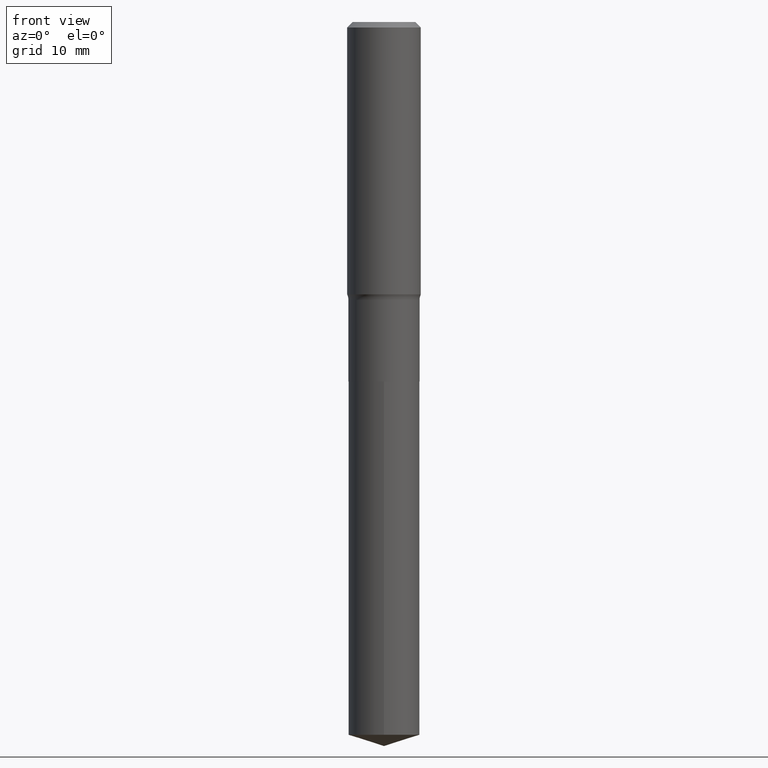
[diagram: clean part render]
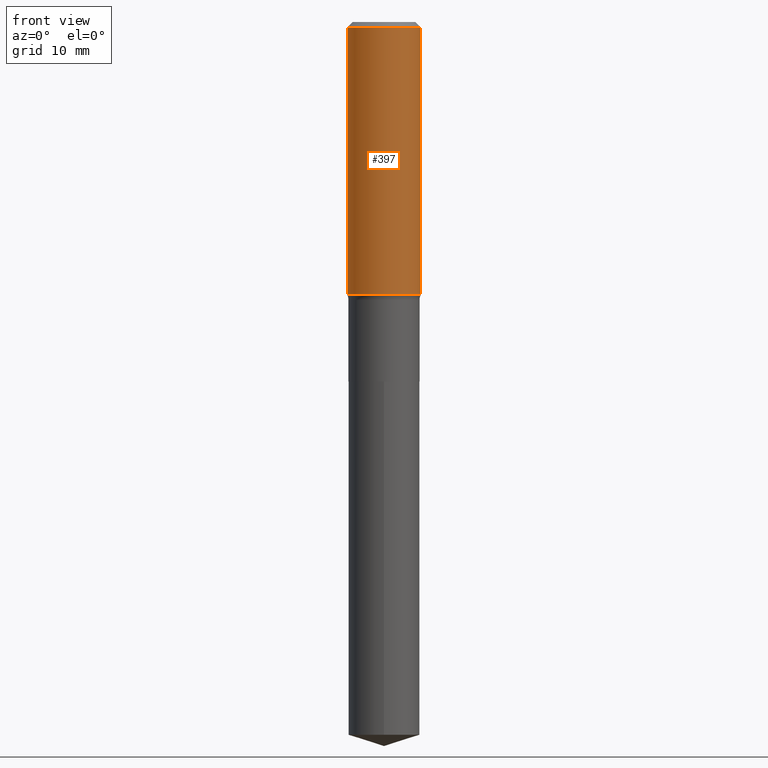
[diagram: same view with one face highlighted and labeled with its STEP entity id]
A machine part, front view. The second image highlights one B-rep face of the part: STEP entity #397.
In plain terms, the highlighted cylindrical surface (partial cylindrical patch) has radius 5.9995 mm, axis along (-0, 0, 1).
Its self-contained STEP definition (entity closure, byte-faithful):
#15 = DIRECTION ( 'NONE',  ( -2.445468806185136877E-29, 3.491481338843145188E-15, 1.000000000000000000 ) ) ;
#16 = DIRECTION ( 'NONE',  ( 1.000000000000000000, -6.982962677686266711E-15, 4.876176775795936353E-29 ) ) ;
#27 = VERTEX_POINT ( 'NONE', #81 ) ;
#38 = DIRECTION ( 'NONE',  ( -2.445468806185136597E-29, 3.491481338843145583E-15, 1.000000000000000000 ) ) ;
#51 = CARTESIAN_POINT ( 'NONE',  ( 0.000000000000000000, 0.000000000000000000, 0.000000000000000000 ) ) ;
#52 = AXIS2_PLACEMENT_3D ( 'NONE', #221, #38, #180 ) ;
#81 = CARTESIAN_POINT ( 'NONE',  ( -0.2362000000000002431, -4.424100567354349199E-15, -1.747797544076708398 ) ) ;
#82 = EDGE_CURVE ( 'NONE', #358, #167, #126, .T. ) ;
#92 = EDGE_CURVE ( 'NONE', #27, #358, #444, .T. ) ;
#104 = EDGE_CURVE ( 'NONE', #27, #443, #244, .T. ) ;
#125 = CYLINDRICAL_SURFACE ( 'NONE', #239, 0.2362000000000001321 ) ;
#126 = CIRCLE ( 'NONE', #52, 0.2361999999999999933 ) ;
#155 = EDGE_LOOP ( 'NONE', ( #331, #338, #285, #222 ) ) ;
#156 = FACE_OUTER_BOUND ( 'NONE', #155, .T. ) ;
#158 = LINE ( 'NONE', #315, #197 ) ;
#167 = VERTEX_POINT ( 'NONE', #363 ) ;
#180 = DIRECTION ( 'NONE',  ( 1.000000000000000000, -6.982962677686266711E-15, 0.000000000000000000 ) ) ;
#187 = DIRECTION ( 'NONE',  ( -2.445468806185136597E-29, 3.491481338843145583E-15, 1.000000000000000000 ) ) ;
#197 = VECTOR ( 'NONE', #15, 39.37007874015748143 ) ;
#221 = CARTESIAN_POINT ( 'NONE',  ( 8.664295980313993487E-31, -1.237031838352134079E-16, -0.03543000000000021826 ) ) ;
#222 = ORIENTED_EDGE ( 'NONE', *, *, #82, .F. ) ;
#227 = CARTESIAN_POINT ( 'NONE',  ( 4.274184373566582098E-29, -6.102402509219707960E-15, -1.747797544076708398 ) ) ;
#239 = AXIS2_PLACEMENT_3D ( 'NONE', #51, #240, #16 ) ;
#240 = DIRECTION ( 'NONE',  ( -2.445468806185136597E-29, 3.491481338843145583E-15, 1.000000000000000000 ) ) ;
#244 = CIRCLE ( 'NONE', #389, 0.2362000000000002431 ) ;
#248 = CARTESIAN_POINT ( 'NONE',  ( -0.2362000000000001321, 1.678301941865357577E-15, -1.161852468318209457E-29 ) ) ;
#285 = ORIENTED_EDGE ( 'NONE', *, *, #434, .T. ) ;
#315 = CARTESIAN_POINT ( 'NONE',  ( 0.2362000000000001321, -1.649375784469497117E-15, 1.151752954443000789E-29 ) ) ;
#331 = ORIENTED_EDGE ( 'NONE', *, *, #92, .F. ) ;
#337 = CARTESIAN_POINT ( 'NONE',  ( -0.2361999999999999933, -1.434750904662102404E-15, -0.03543000000000021826 ) ) ;
#338 = ORIENTED_EDGE ( 'NONE', *, *, #104, .T. ) ;
#344 = DIRECTION ( 'NONE',  ( 1.000000000000000000, -6.982962677686265922E-15, 0.000000000000000000 ) ) ;
#358 = VERTEX_POINT ( 'NONE', #337 ) ;
#361 = VECTOR ( 'NONE', #401, 39.37007874015748143 ) ;
#363 = CARTESIAN_POINT ( 'NONE',  ( 0.2361999999999999933, -1.773078968304709514E-15, -0.03543000000000021826 ) ) ;
#389 = AXIS2_PLACEMENT_3D ( 'NONE', #227, #187, #344 ) ;
#397 = ADVANCED_FACE ( 'NONE', ( #156 ), #125, .T. ) ;
#401 = DIRECTION ( 'NONE',  ( -2.445468806185136877E-29, 3.491481338843145188E-15, 1.000000000000000000 ) ) ;
#434 = EDGE_CURVE ( 'NONE', #443, #167, #158, .T. ) ;
#443 = VERTEX_POINT ( 'NONE', #470 ) ;
#444 = LINE ( 'NONE', #248, #361 ) ;
#470 = CARTESIAN_POINT ( 'NONE',  ( 0.2362000000000002431, -7.751778293689206063E-15, -1.747797544076708398 ) ) ;